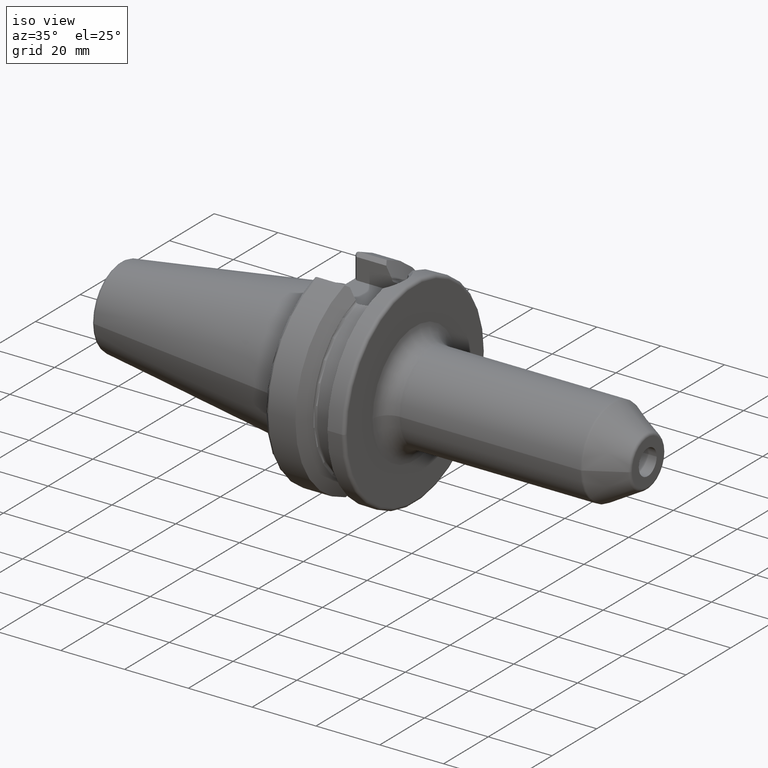
[diagram: clean part render]
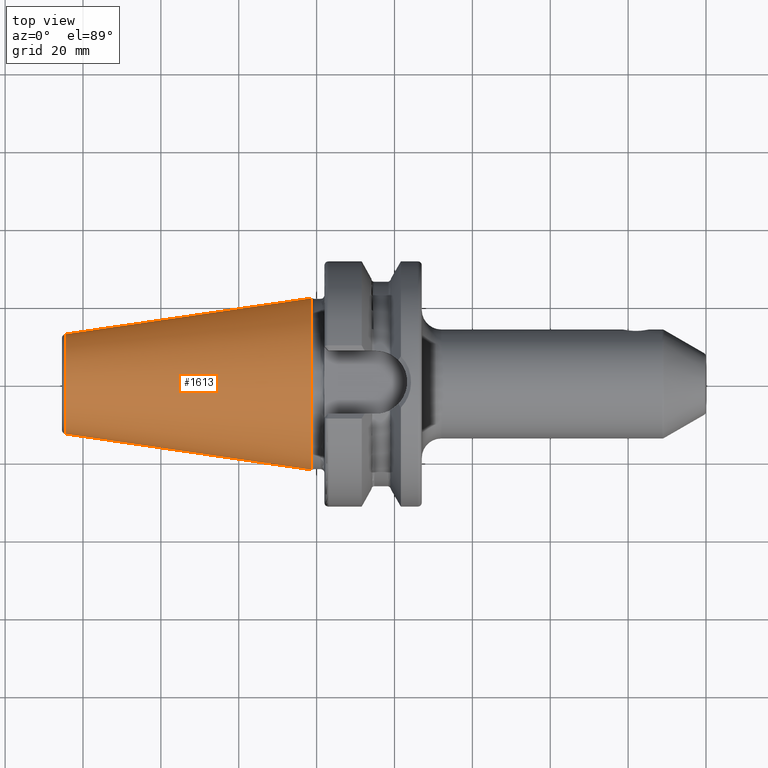
[diagram: tour spotlight — one face highlighted and labeled with its STEP entity id]
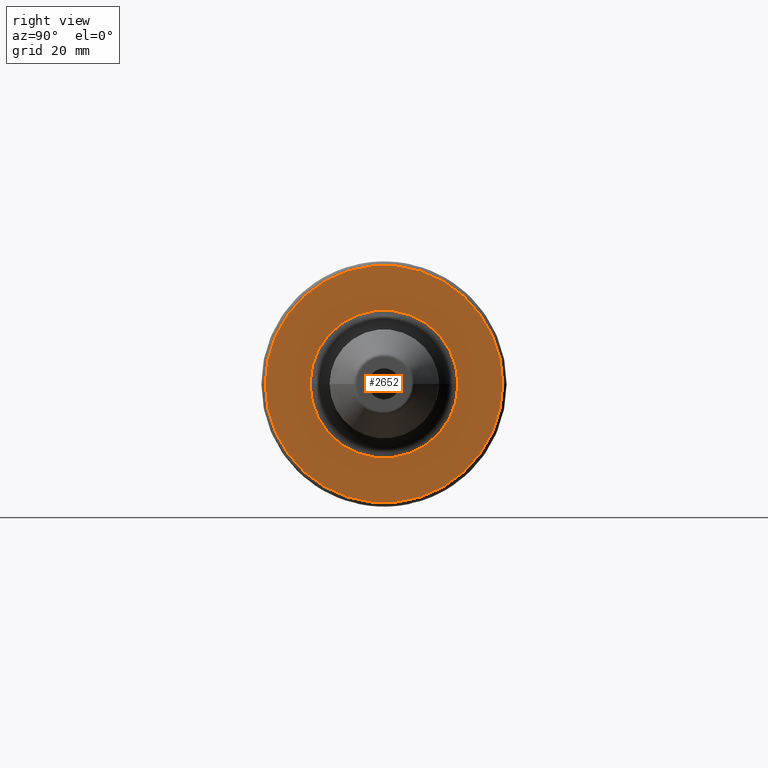
[diagram: tour spotlight — one face highlighted and labeled with its STEP entity id]
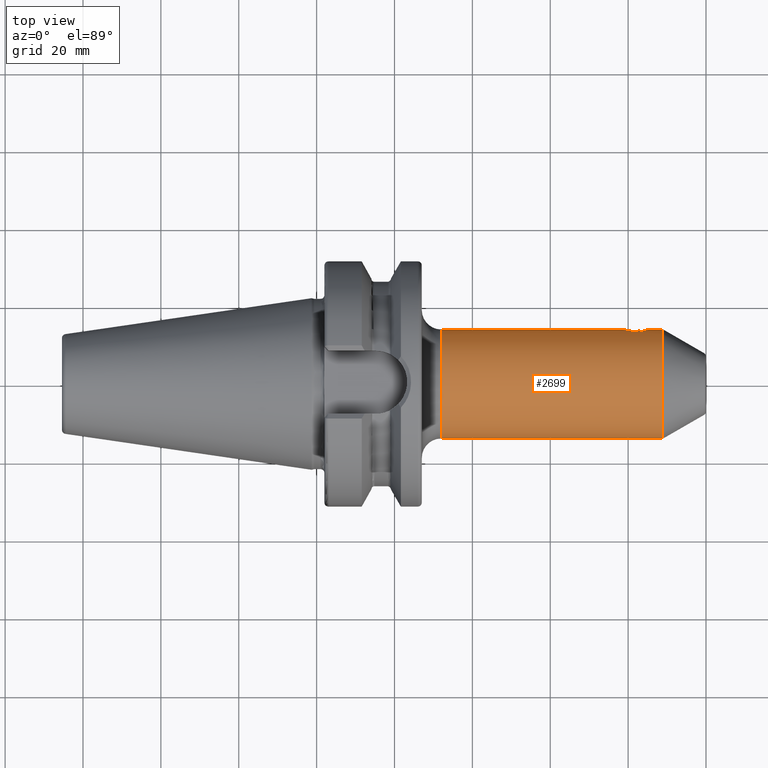
[diagram: tour spotlight — one face highlighted and labeled with its STEP entity id]
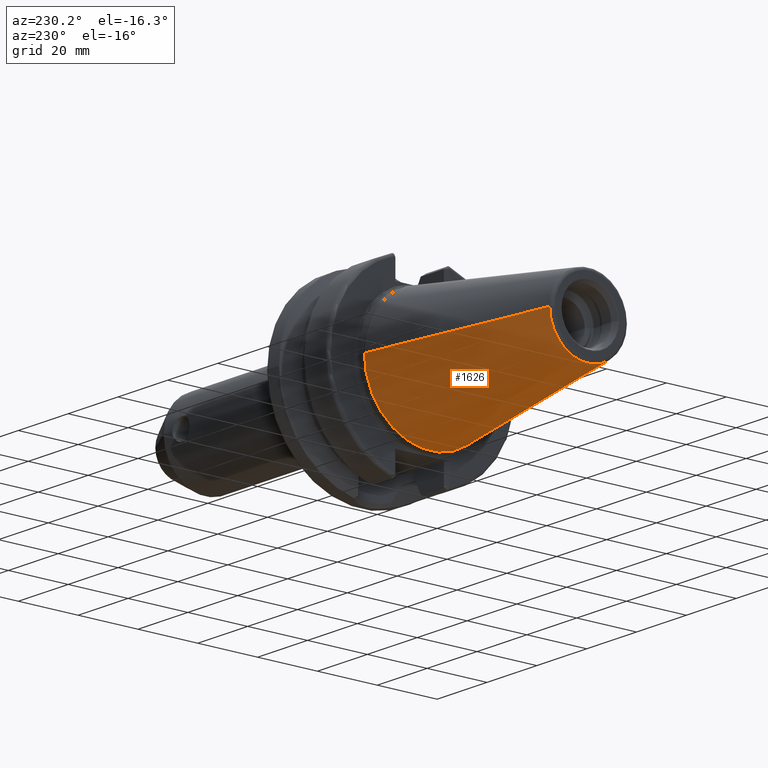
[diagram: tour spotlight — one face highlighted and labeled with its STEP entity id]
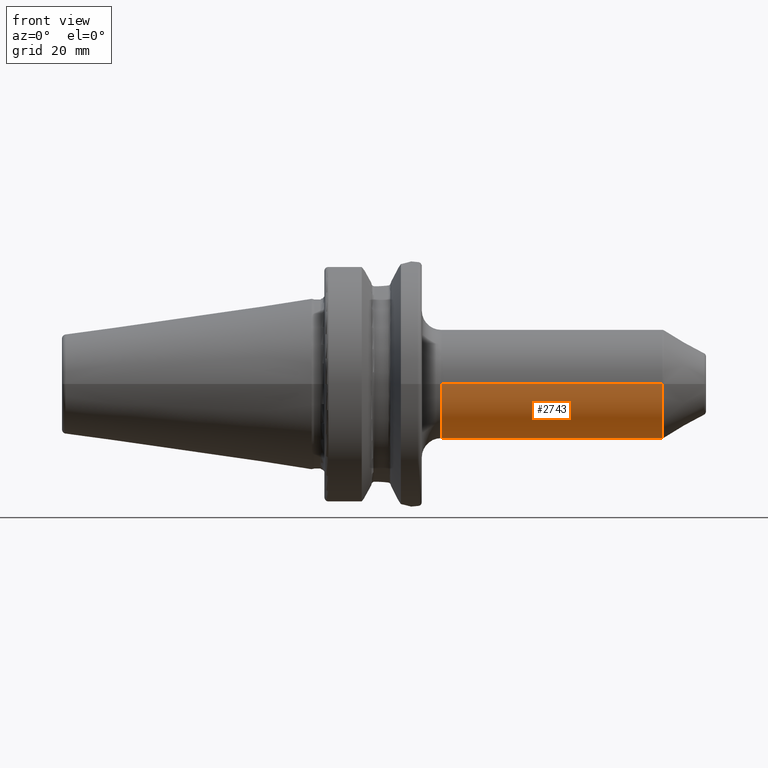
[diagram: tour spotlight — one face highlighted and labeled with its STEP entity id]
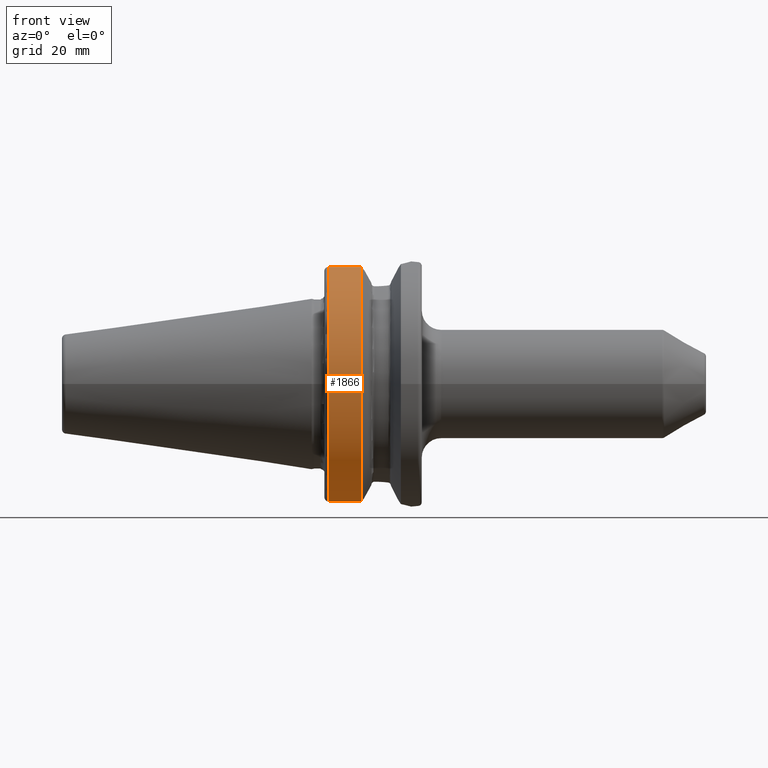
[diagram: tour spotlight — one face highlighted and labeled with its STEP entity id]
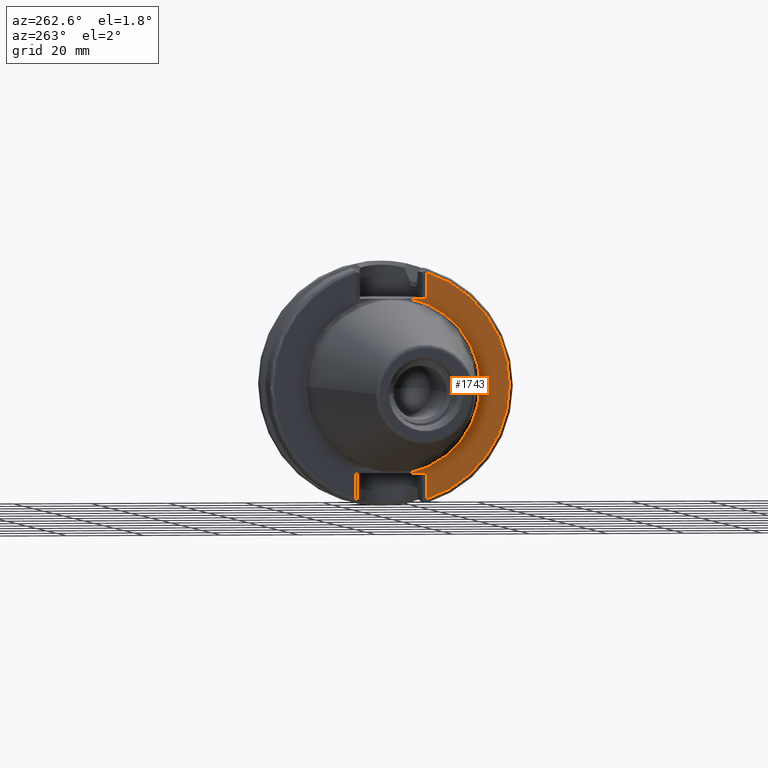
[diagram: tour spotlight — one face highlighted and labeled with its STEP entity id]
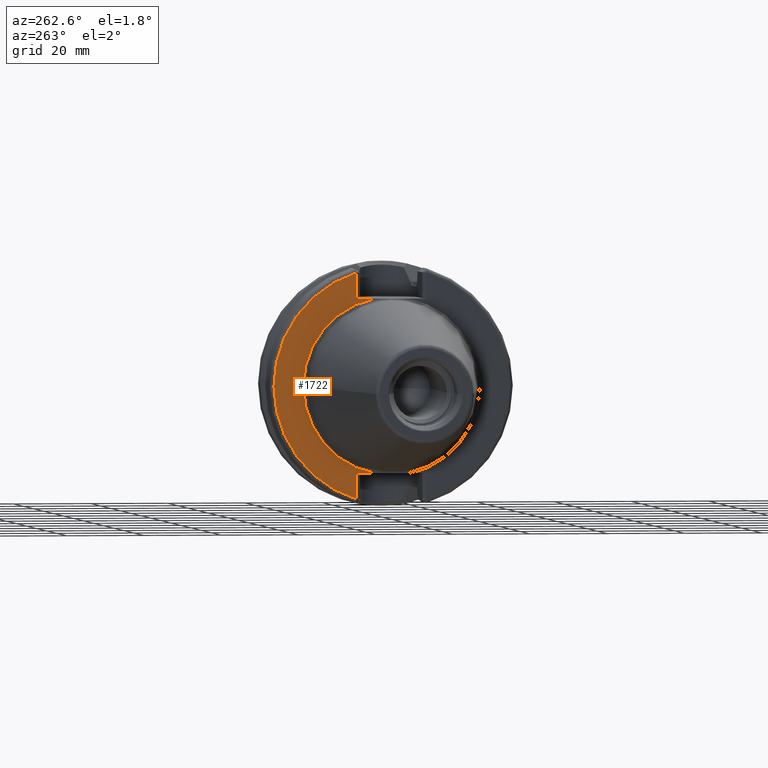
[diagram: tour spotlight — one face highlighted and labeled with its STEP entity id]
A machine part: a face-by-face anatomy tour. The part has 102 B-rep faces; the first image is the clean iso view, then the 8 largest visible faces are spotlighted one at a time (largest first), each with its STEP entity span.

Face 1 — top view, entity #1613. In plain terms, the highlighted conical surface has half-angle 8.298 deg.
Definition (entity closure, byte-faithful):
#37=CARTESIAN_POINT('',(-6.454431866917E1,0.E0,0.E0));
#38=DIRECTION('',(1.E0,0.E0,0.E0));
#39=DIRECTION('',(0.E0,1.E0,0.E0));
#40=AXIS2_PLACEMENT_3D('',#37,#38,#39);
#42=CARTESIAN_POINT('',(-1.266732031557E0,0.E0,0.E0));
#43=DIRECTION('',(1.E0,0.E0,0.E0));
#44=DIRECTION('',(0.E0,1.E0,0.E0));
#45=AXIS2_PLACEMENT_3D('',#42,#43,#44);
#47=DIRECTION('',(-9.895312636440E-1,-1.443186691705E-1,0.E0));
#48=VECTOR('',#47,6.394703124850E1);
#49=CARTESIAN_POINT('',(-1.266732031557E0,2.204025284980E1,0.E0));
#50=LINE('',#49,#48);
#51=DIRECTION('',(-9.895312636440E-1,1.443186691705E-1,0.E0));
#52=VECTOR('',#51,6.394703124850E1);
#53=CARTESIAN_POINT('',(-1.266732031557E0,-2.204025284980E1,0.E0));
#54=LINE('',#53,#52);
#1294=CARTESIAN_POINT('',(-6.454431866917E1,1.281150240261E1,0.E0));
#1296=VERTEX_POINT('',#1294);
#1298=CARTESIAN_POINT('',(-6.454431866917E1,-1.281150240261E1,0.E0));
#1300=VERTEX_POINT('',#1298);
#1513=CARTESIAN_POINT('',(-1.266732031557E0,2.204025284980E1,0.E0));
#1514=VERTEX_POINT('',#1513);
#1515=CARTESIAN_POINT('',(-1.266732031557E0,-2.204025284980E1,0.E0));
#1516=VERTEX_POINT('',#1515);
#1599=CARTESIAN_POINT('',(-3.290552535036E1,0.E0,0.E0));
#1600=DIRECTION('',(1.E0,0.E0,0.E0));
#1601=DIRECTION('',(0.E0,-1.E0,0.E0));
#1602=AXIS2_PLACEMENT_3D('',#1599,#1600,#1601);
#1603=CONICAL_SURFACE('',#1602,1.742587762621E1,8.297826828206E0);
#1605=ORIENTED_EDGE('',*,*,#1604,.F.);
#1607=ORIENTED_EDGE('',*,*,#1606,.T.);
#1609=ORIENTED_EDGE('',*,*,#1608,.T.);
#1610=ORIENTED_EDGE('',*,*,#1592,.F.);
#1611=EDGE_LOOP('',(#1605,#1607,#1609,#1610));
#1612=FACE_OUTER_BOUND('',#1611,.F.);
#1613=ADVANCED_FACE('',(#1612),#1603,.T.);
#41=CIRCLE('',#40,1.281150240261E1);
#46=CIRCLE('',#45,2.204025284980E1);
#1592=EDGE_CURVE('',#1296,#1300,#41,.T.);
#1604=EDGE_CURVE('',#1514,#1296,#50,.T.);
#1606=EDGE_CURVE('',#1514,#1516,#46,.T.);
#1608=EDGE_CURVE('',#1516,#1300,#54,.T.);

Face 2 — right view, entity #2652. In plain terms, the highlighted planar face has unit normal (1, 0, 0).
Definition (entity closure, byte-faithful):
#816=CARTESIAN_POINT('',(2.7E1,0.E0,0.E0));
#817=DIRECTION('',(1.E0,0.E0,0.E0));
#818=DIRECTION('',(0.E0,1.E0,0.E0));
#819=AXIS2_PLACEMENT_3D('',#816,#817,#818);
#831=CARTESIAN_POINT('',(2.7E1,0.E0,0.E0));
#832=DIRECTION('',(-1.E0,0.E0,0.E0));
#833=DIRECTION('',(0.E0,1.E0,0.E0));
#834=AXIS2_PLACEMENT_3D('',#831,#832,#833);
#836=CARTESIAN_POINT('',(2.7E1,0.E0,0.E0));
#837=DIRECTION('',(1.E0,0.E0,0.E0));
#838=DIRECTION('',(0.E0,-1.E0,0.E0));
#839=AXIS2_PLACEMENT_3D('',#836,#837,#838);
#841=CARTESIAN_POINT('',(2.7E1,0.E0,0.E0));
#842=DIRECTION('',(1.E0,0.E0,0.E0));
#843=DIRECTION('',(0.E0,1.E0,0.E0));
#844=AXIS2_PLACEMENT_3D('',#841,#842,#843);
#1428=CARTESIAN_POINT('',(2.7E1,3.04875E1,0.E0));
#1429=VERTEX_POINT('',#1428);
#1430=CARTESIAN_POINT('',(2.7E1,-3.04875E1,0.E0));
#1431=VERTEX_POINT('',#1430);
#1529=CARTESIAN_POINT('',(2.7E1,-1.9E1,0.E0));
#1530=CARTESIAN_POINT('',(2.7E1,1.9E1,0.E0));
#1531=VERTEX_POINT('',#1529);
#1532=VERTEX_POINT('',#1530);
#2637=CARTESIAN_POINT('',(2.7E1,0.E0,0.E0));
#2638=DIRECTION('',(1.E0,0.E0,0.E0));
#2639=DIRECTION('',(0.E0,-1.E0,0.E0));
#2640=AXIS2_PLACEMENT_3D('',#2637,#2638,#2639);
#2641=PLANE('',#2640);
#2642=ORIENTED_EDGE('',*,*,#2632,.T.);
#2643=ORIENTED_EDGE('',*,*,#2616,.F.);
#2644=EDGE_LOOP('',(#2642,#2643));
#2645=FACE_OUTER_BOUND('',#2644,.F.);
#2647=ORIENTED_EDGE('',*,*,#2646,.T.);
#2649=ORIENTED_EDGE('',*,*,#2648,.T.);
#2650=EDGE_LOOP('',(#2647,#2649));
#2651=FACE_BOUND('',#2650,.F.);
#2652=ADVANCED_FACE('',(#2645,#2651),#2641,.T.);
#820=CIRCLE('',#819,3.04875E1);
#835=CIRCLE('',#834,3.04875E1);
#840=CIRCLE('',#839,1.9E1);
#845=CIRCLE('',#844,1.9E1);
#2616=EDGE_CURVE('',#1429,#1431,#820,.T.);
#2632=EDGE_CURVE('',#1429,#1431,#835,.T.);
#2646=EDGE_CURVE('',#1531,#1532,#840,.T.);
#2648=EDGE_CURVE('',#1532,#1531,#845,.T.);

Face 3 — top view, entity #2699. In plain terms, the highlighted cylindrical surface (partial cylindrical patch) has radius 14 mm, axis along (1, 0, 0).
Definition (entity closure, byte-faithful):
#856=CARTESIAN_POINT('',(8.873205080757E1,0.E0,0.E0));
#857=DIRECTION('',(-1.E0,0.E0,0.E0));
#858=DIRECTION('',(0.E0,-1.E0,0.E0));
#859=AXIS2_PLACEMENT_3D('',#856,#857,#858);
#861=CARTESIAN_POINT('',(3.2E1,0.E0,0.E0));
#862=DIRECTION('',(1.E0,0.E0,0.E0));
#863=DIRECTION('',(0.E0,1.E0,0.E0));
#864=AXIS2_PLACEMENT_3D('',#861,#862,#863);
#866=CARTESIAN_POINT('',(8.54E1,1.4E1,0.E0));
#867=CARTESIAN_POINT('',(8.54E1,1.4E1,2.235108655869E-1));
#868=CARTESIAN_POINT('',(8.535688758079E1,1.398943470966E1,6.615089276859E-1));
#869=CARTESIAN_POINT('',(8.516426425526E1,1.394392107935E1,1.302298227191E0));
#870=CARTESIAN_POINT('',(8.485258800685E1,1.387569668318E1,1.889062807267E0));
#871=CARTESIAN_POINT('',(8.443491012316E1,1.379489229600E1,2.403600047726E0));
#872=CARTESIAN_POINT('',(8.392522333627E1,1.371306387193E1,2.828445185897E0));
#873=CARTESIAN_POINT('',(8.334019969910E1,1.364221148401E1,3.148601282182E0));
#874=CARTESIAN_POINT('',(8.269519582112E1,1.359323806992E1,3.351072023934E0));
#875=CARTESIAN_POINT('',(8.202027132267E1,1.357521549289E1,3.422345608711E0));
#876=CARTESIAN_POINT('',(8.134597271364E1,1.359120505091E1,3.359179214455E0));
#877=CARTESIAN_POINT('',(8.069958988272E1,1.363827482784E1,3.165403868172E0));
#878=CARTESIAN_POINT('',(8.010540101493E1,1.370865303423E1,2.849641594248E0));
#879=CARTESIAN_POINT('',(7.958561030798E1,1.379117730538E1,2.424959378607E0));
#880=CARTESIAN_POINT('',(7.915887896700E1,1.387327800363E1,1.907129268942E0));
#881=CARTESIAN_POINT('',(7.884099959156E1,1.394269899228E1,1.316150473743E0));
#882=CARTESIAN_POINT('',(7.864412411289E1,1.398918397245E1,6.690701643518E-1));
#883=CARTESIAN_POINT('',(7.86E1,1.4E1,2.261801830964E-1));
#884=CARTESIAN_POINT('',(7.86E1,1.4E1,0.E0));
#901=DIRECTION('',(-1.E0,0.E0,1.556720858388E-12));
#902=VECTOR('',#901,3.332050807569E0);
#903=CARTESIAN_POINT('',(8.873205080757E1,1.4E1,-5.186215740592E-12));
#904=LINE('',#903,#902);
#925=DIRECTION('',(-1.E0,0.E0,6.383216559045E-14));
#926=VECTOR('',#925,4.66E1);
#927=CARTESIAN_POINT('',(7.86E1,1.4E1,0.E0));
#928=LINE('',#927,#926);
#934=DIRECTION('',(-1.E0,0.E0,-1.438638727067E-13));
#935=VECTOR('',#934,5.673205080757E1);
#936=CARTESIAN_POINT('',(8.873205080757E1,-1.4E1,5.185779167861E-12));
#937=LINE('',#936,#935);
#1525=VERTEX_POINT('',#866);
#1526=VERTEX_POINT('',#884);
#1533=CARTESIAN_POINT('',(3.2E1,-1.4E1,0.E0));
#1534=CARTESIAN_POINT('',(3.2E1,1.4E1,0.E0));
#1535=VERTEX_POINT('',#1533);
#1536=VERTEX_POINT('',#1534);
#1537=CARTESIAN_POINT('',(8.873205080757E1,1.4E1,0.E0));
#1538=CARTESIAN_POINT('',(8.873205080757E1,-1.4E1,0.E0));
#1539=VERTEX_POINT('',#1537);
#1540=VERTEX_POINT('',#1538);
#2681=CARTESIAN_POINT('',(2.335E1,0.E0,0.E0));
#2682=DIRECTION('',(1.E0,0.E0,0.E0));
#2683=DIRECTION('',(0.E0,-1.E0,0.E0));
#2684=AXIS2_PLACEMENT_3D('',#2681,#2682,#2683);
#2685=CYLINDRICAL_SURFACE('',#2684,1.4E1);
#2687=ORIENTED_EDGE('',*,*,#2686,.F.);
#2689=ORIENTED_EDGE('',*,*,#2688,.T.);
#2690=ORIENTED_EDGE('',*,*,#2673,.F.);
#2692=ORIENTED_EDGE('',*,*,#2691,.F.);
#2694=ORIENTED_EDGE('',*,*,#2693,.F.);
#2696=ORIENTED_EDGE('',*,*,#2695,.F.);
#2697=EDGE_LOOP('',(#2687,#2689,#2690,#2692,#2694,#2696));
#2698=FACE_OUTER_BOUND('',#2697,.F.);
#2699=ADVANCED_FACE('',(#2698),#2685,.T.);
#860=CIRCLE('',#859,1.4E1);
#865=CIRCLE('',#864,1.4E1);
#885=B_SPLINE_CURVE_WITH_KNOTS('',3,(#866,#867,#868,#869,#870,#871,#872,#873,
#874,#875,#876,#877,#878,#879,#880,#881,#882,#883,#884),.UNSPECIFIED.,.F.,.F.,
(4,1,1,1,1,1,1,1,1,1,1,1,1,1,1,1,4),(0.E0,6.25E-2,1.25E-1,1.875E-1,2.5E-1,
3.125E-1,3.75E-1,4.375E-1,5.E-1,5.625E-1,6.25E-1,6.875E-1,7.5E-1,8.125E-1,
8.75E-1,9.375E-1,1.E0),.UNSPECIFIED.);
#2673=EDGE_CURVE('',#1536,#1535,#865,.T.);
#2686=EDGE_CURVE('',#1540,#1539,#860,.T.);
#2688=EDGE_CURVE('',#1540,#1535,#937,.T.);
#2691=EDGE_CURVE('',#1526,#1536,#928,.T.);
#2693=EDGE_CURVE('',#1525,#1526,#885,.T.);
#2695=EDGE_CURVE('',#1539,#1525,#904,.T.);

Face 4 — auxiliary view, entity #1626. In plain terms, the highlighted conical surface has half-angle 8.298 deg.
Definition (entity closure, byte-faithful):
#32=CARTESIAN_POINT('',(-6.454431866917E1,0.E0,0.E0));
#33=DIRECTION('',(-1.E0,0.E0,0.E0));
#34=DIRECTION('',(0.E0,1.E0,0.E0));
#35=AXIS2_PLACEMENT_3D('',#32,#33,#34);
#47=DIRECTION('',(-9.895312636440E-1,-1.443186691705E-1,0.E0));
#48=VECTOR('',#47,6.394703124850E1);
#49=CARTESIAN_POINT('',(-1.266732031557E0,2.204025284980E1,0.E0));
#50=LINE('',#49,#48);
#51=DIRECTION('',(-9.895312636440E-1,1.443186691705E-1,0.E0));
#52=VECTOR('',#51,6.394703124850E1);
#53=CARTESIAN_POINT('',(-1.266732031557E0,-2.204025284980E1,0.E0));
#54=LINE('',#53,#52);
#55=CARTESIAN_POINT('',(-1.266732031557E0,0.E0,0.E0));
#56=DIRECTION('',(-1.E0,0.E0,0.E0));
#57=DIRECTION('',(0.E0,1.E0,0.E0));
#58=AXIS2_PLACEMENT_3D('',#55,#56,#57);
#1294=CARTESIAN_POINT('',(-6.454431866917E1,1.281150240261E1,0.E0));
#1296=VERTEX_POINT('',#1294);
#1298=CARTESIAN_POINT('',(-6.454431866917E1,-1.281150240261E1,0.E0));
#1300=VERTEX_POINT('',#1298);
#1513=CARTESIAN_POINT('',(-1.266732031557E0,2.204025284980E1,0.E0));
#1514=VERTEX_POINT('',#1513);
#1515=CARTESIAN_POINT('',(-1.266732031557E0,-2.204025284980E1,0.E0));
#1516=VERTEX_POINT('',#1515);
#1614=CARTESIAN_POINT('',(-3.290552535036E1,0.E0,0.E0));
#1615=DIRECTION('',(1.E0,0.E0,0.E0));
#1616=DIRECTION('',(0.E0,-1.E0,0.E0));
#1617=AXIS2_PLACEMENT_3D('',#1614,#1615,#1616);
#1618=CONICAL_SURFACE('',#1617,1.742587762621E1,8.297826828206E0);
#1619=ORIENTED_EDGE('',*,*,#1604,.T.);
#1620=ORIENTED_EDGE('',*,*,#1581,.T.);
#1621=ORIENTED_EDGE('',*,*,#1608,.F.);
#1623=ORIENTED_EDGE('',*,*,#1622,.F.);
#1624=EDGE_LOOP('',(#1619,#1620,#1621,#1623));
#1625=FACE_OUTER_BOUND('',#1624,.F.);
#1626=ADVANCED_FACE('',(#1625),#1618,.T.);
#36=CIRCLE('',#35,1.281150240261E1);
#59=CIRCLE('',#58,2.204025284980E1);
#1581=EDGE_CURVE('',#1296,#1300,#36,.T.);
#1604=EDGE_CURVE('',#1514,#1296,#50,.T.);
#1608=EDGE_CURVE('',#1516,#1300,#54,.T.);
#1622=EDGE_CURVE('',#1514,#1516,#59,.T.);

Face 5 — front view, entity #2743. In plain terms, the highlighted cylindrical surface (partial cylindrical patch) has radius 14 mm, axis along (1, 0, 0).
Definition (entity closure, byte-faithful):
#866=CARTESIAN_POINT('',(8.54E1,1.4E1,0.E0));
#884=CARTESIAN_POINT('',(7.86E1,1.4E1,0.E0));
#896=CARTESIAN_POINT('',(8.873205080757E1,0.E0,0.E0));
#897=DIRECTION('',(-1.E0,0.E0,0.E0));
#898=DIRECTION('',(0.E0,1.E0,0.E0));
#899=AXIS2_PLACEMENT_3D('',#896,#897,#898);
#901=DIRECTION('',(-1.E0,0.E0,1.556720858388E-12));
#902=VECTOR('',#901,3.332050807569E0);
#903=CARTESIAN_POINT('',(8.873205080757E1,1.4E1,-5.186215740592E-12));
#904=LINE('',#903,#902);
#905=CARTESIAN_POINT('',(7.86E1,1.4E1,0.E0));
#906=CARTESIAN_POINT('',(7.86E1,1.4E1,-2.231562732058E-1));
#907=CARTESIAN_POINT('',(7.864298012491E1,1.398946756483E1,-6.605099202631E-1));
#908=CARTESIAN_POINT('',(7.883504453144E1,1.394408140233E1,-1.300478179657E0));
#909=CARTESIAN_POINT('',(7.914594903352E1,1.387600613631E1,-1.886732676915E0));
#910=CARTESIAN_POINT('',(7.956233155008E1,1.379539529519E1,-2.400679876786E0));
#911=CARTESIAN_POINT('',(8.007044363743E1,1.371369591527E1,-2.825388788542E0));
#912=CARTESIAN_POINT('',(8.065403681884E1,1.364278985832E1,-3.146126422897E0));
#913=CARTESIAN_POINT('',(8.129921161854E1,1.359351396268E1,-3.349973294811E0));
#914=CARTESIAN_POINT('',(8.197498267400E1,1.357520902013E1,-3.422370545153E0));
#915=CARTESIAN_POINT('',(8.265004090069E1,1.359100290876E1,-3.359987024249E0));
#916=CARTESIAN_POINT('',(8.329708182257E1,1.363794618980E1,-3.166806389833E0));
#917=CARTESIAN_POINT('',(8.389213227934E1,1.370830051980E1,-2.851329798670E0));
#918=CARTESIAN_POINT('',(8.441272194079E1,1.379087694659E1,-2.426674591729E0));
#919=CARTESIAN_POINT('',(8.484016501682E1,1.387307680736E1,-1.908622709765E0));
#920=CARTESIAN_POINT('',(8.515857323528E1,1.394259973954E1,-1.317274340851E0));
#921=CARTESIAN_POINT('',(8.535579552230E1,1.398916407164E1,-6.696714596922E-1));
#922=CARTESIAN_POINT('',(8.54E1,1.4E1,-2.263905402596E-1));
#923=CARTESIAN_POINT('',(8.54E1,1.4E1,0.E0));
#925=DIRECTION('',(-1.E0,0.E0,6.383216559045E-14));
#926=VECTOR('',#925,4.66E1);
#927=CARTESIAN_POINT('',(7.86E1,1.4E1,0.E0));
#928=LINE('',#927,#926);
#929=CARTESIAN_POINT('',(3.2E1,0.E0,0.E0));
#930=DIRECTION('',(1.E0,0.E0,0.E0));
#931=DIRECTION('',(0.E0,-1.E0,0.E0));
#932=AXIS2_PLACEMENT_3D('',#929,#930,#931);
#934=DIRECTION('',(-1.E0,0.E0,-1.438638727067E-13));
#935=VECTOR('',#934,5.673205080757E1);
#936=CARTESIAN_POINT('',(8.873205080757E1,-1.4E1,5.185779167861E-12));
#937=LINE('',#936,#935);
#1525=VERTEX_POINT('',#866);
#1526=VERTEX_POINT('',#884);
#1533=CARTESIAN_POINT('',(3.2E1,-1.4E1,0.E0));
#1534=CARTESIAN_POINT('',(3.2E1,1.4E1,0.E0));
#1535=VERTEX_POINT('',#1533);
#1536=VERTEX_POINT('',#1534);
#1537=CARTESIAN_POINT('',(8.873205080757E1,1.4E1,0.E0));
#1538=CARTESIAN_POINT('',(8.873205080757E1,-1.4E1,0.E0));
#1539=VERTEX_POINT('',#1537);
#1540=VERTEX_POINT('',#1538);
#2729=CARTESIAN_POINT('',(2.335E1,0.E0,0.E0));
#2730=DIRECTION('',(1.E0,0.E0,0.E0));
#2731=DIRECTION('',(0.E0,-1.E0,0.E0));
#2732=AXIS2_PLACEMENT_3D('',#2729,#2730,#2731);
#2733=CYLINDRICAL_SURFACE('',#2732,1.4E1);
#2734=ORIENTED_EDGE('',*,*,#2720,.F.);
#2735=ORIENTED_EDGE('',*,*,#2695,.T.);
#2737=ORIENTED_EDGE('',*,*,#2736,.F.);
#2738=ORIENTED_EDGE('',*,*,#2691,.T.);
#2739=ORIENTED_EDGE('',*,*,#2661,.F.);
#2740=ORIENTED_EDGE('',*,*,#2688,.F.);
#2741=EDGE_LOOP('',(#2734,#2735,#2737,#2738,#2739,#2740));
#2742=FACE_OUTER_BOUND('',#2741,.F.);
#2743=ADVANCED_FACE('',(#2742),#2733,.T.);
#900=CIRCLE('',#899,1.4E1);
#924=B_SPLINE_CURVE_WITH_KNOTS('',3,(#905,#906,#907,#908,#909,#910,#911,#912,
#913,#914,#915,#916,#917,#918,#919,#920,#921,#922,#923),.UNSPECIFIED.,.F.,.F.,
(4,1,1,1,1,1,1,1,1,1,1,1,1,1,1,1,4),(0.E0,6.25E-2,1.25E-1,1.875E-1,2.5E-1,
3.125E-1,3.75E-1,4.375E-1,5.E-1,5.625E-1,6.25E-1,6.875E-1,7.5E-1,8.125E-1,
8.75E-1,9.375E-1,1.E0),.UNSPECIFIED.);
#933=CIRCLE('',#932,1.4E1);
#2661=EDGE_CURVE('',#1535,#1536,#933,.T.);
#2688=EDGE_CURVE('',#1540,#1535,#937,.T.);
#2691=EDGE_CURVE('',#1526,#1536,#928,.T.);
#2695=EDGE_CURVE('',#1539,#1525,#904,.T.);
#2720=EDGE_CURVE('',#1539,#1540,#900,.T.);
#2736=EDGE_CURVE('',#1526,#1525,#924,.T.);

Face 6 — front view, entity #1866. In plain terms, the highlighted cylindrical surface (partial cylindrical patch) has radius 31.4875 mm, axis along (1, 0, 0).
Definition (entity closure, byte-faithful):
#210=CARTESIAN_POINT('',(1.157272253103E1,0.E0,0.E0));
#211=DIRECTION('',(1.E0,0.E0,0.E0));
#212=DIRECTION('',(0.E0,-2.983189831898E-1,9.544662300305E-1));
#213=AXIS2_PLACEMENT_3D('',#210,#211,#212);
#215=DIRECTION('',(9.999999999998E-1,-3.572441507671E-7,4.802508939409E-7));
#216=VECTOR('',#215,8.572722533299E0);
#217=CARTESIAN_POINT('',(2.999999997734E0,-9.052776400559E0,-3.015808496187E1));
#218=LINE('',#217,#216);
#219=CARTESIAN_POINT('',(3.E0,0.E0,0.E0));
#220=DIRECTION('',(-1.E0,0.E0,0.E0));
#221=DIRECTION('',(0.E0,-2.875039130802E-1,-9.577794631143E-1));
#222=AXIS2_PLACEMENT_3D('',#219,#220,#221);
#224=DIRECTION('',(-9.999999999911E-1,2.496639374553E-6,3.395432034657E-6));
#225=VECTOR('',#224,8.572722551500E0);
#226=CARTESIAN_POINT('',(1.157272253103E1,-9.393318983190E0,3.005375541808E1));
#227=LINE('',#226,#225);
#606=CARTESIAN_POINT('',(2.999999997734E0,-9.052776400559E0,-3.015808496187E1));
#1464=CARTESIAN_POINT('',(1.157272253103E1,-9.393318983190E0,3.005375541808E1));
#1465=CARTESIAN_POINT('',(1.157272253103E1,-9.052779463114E0,
-3.015808084481E1));
#1466=VERTEX_POINT('',#1464);
#1467=VERTEX_POINT('',#1465);
#1480=CARTESIAN_POINT('',(3.E0,-9.393347656107E0,3.005374645633E1));
#1481=VERTEX_POINT('',#1480);
#1502=VERTEX_POINT('',#606);
#1852=CARTESIAN_POINT('',(-7.002E1,0.E0,0.E0));
#1853=DIRECTION('',(1.E0,0.E0,0.E0));
#1854=DIRECTION('',(0.E0,-1.E0,0.E0));
#1855=AXIS2_PLACEMENT_3D('',#1852,#1853,#1854);
#1856=CYLINDRICAL_SURFACE('',#1855,3.14875E1);
#1857=ORIENTED_EDGE('',*,*,#1843,.T.);
#1859=ORIENTED_EDGE('',*,*,#1858,.F.);
#1861=ORIENTED_EDGE('',*,*,#1860,.T.);
#1863=ORIENTED_EDGE('',*,*,#1862,.F.);
#1864=EDGE_LOOP('',(#1857,#1859,#1861,#1863));
#1865=FACE_OUTER_BOUND('',#1864,.F.);
#1866=ADVANCED_FACE('',(#1865),#1856,.T.);
#214=CIRCLE('',#213,3.14875E1);
#223=CIRCLE('',#222,3.14875E1);
#1843=EDGE_CURVE('',#1466,#1467,#214,.T.);
#1858=EDGE_CURVE('',#1502,#1467,#218,.T.);
#1860=EDGE_CURVE('',#1502,#1481,#223,.T.);
#1862=EDGE_CURVE('',#1466,#1481,#227,.T.);

Face 7 — auxiliary view, entity #1743. In plain terms, the highlighted planar face has unit normal (1, 0, 0).
Definition (entity closure, byte-faithful):
#111=CARTESIAN_POINT('',(2.E0,0.E0,0.E0));
#112=DIRECTION('',(-1.E0,0.E0,0.E0));
#113=DIRECTION('',(0.E0,-1.918678763451E-1,-9.814207650273E-1));
#114=AXIS2_PLACEMENT_3D('',#111,#112,#113);
#135=DIRECTION('',(-2.137863157207E-6,2.138092595446E-6,-9.999999999954E-1));
#136=VECTOR('',#135,6.649288203879E0);
#137=CARTESIAN_POINT('',(2.E0,-9.095E0,-2.245E1));
#138=LINE('',#137,#136);
#139=DIRECTION('',(4.462834027234E-6,-4.463945838797E-6,-9.999999999801E-1));
#140=VECTOR('',#139,6.649296399172E0);
#141=CARTESIAN_POINT('',(1.999970325294E0,-9.094970317901E0,2.909929639904E1));
#142=LINE('',#141,#140);
#597=CARTESIAN_POINT('',(1.999985784732E0,-9.094985783206E0,-2.909928820385E1));
#608=CARTESIAN_POINT('',(2.E0,0.E0,0.E0));
#609=DIRECTION('',(-1.E0,0.E0,0.E0));
#610=DIRECTION('',(0.E0,-2.983190208830E-1,-9.544662182495E-1));
#611=AXIS2_PLACEMENT_3D('',#608,#609,#610);
#684=DIRECTION('',(0.E0,1.E0,0.E0));
#685=VECTOR('',#684,4.706022328605E0);
#686=CARTESIAN_POINT('',(2.E0,-9.095E0,2.245E1));
#687=LINE('',#686,#685);
#725=CARTESIAN_POINT('',(2.E0,0.E0,0.E0));
#726=DIRECTION('',(1.E0,0.E0,0.E0));
#727=DIRECTION('',(0.E0,-1.918678763451E-1,9.814207650273E-1));
#728=AXIS2_PLACEMENT_3D('',#725,#726,#727);
#750=DIRECTION('',(0.E0,-1.E0,0.E0));
#751=VECTOR('',#750,4.706022328605E0);
#752=CARTESIAN_POINT('',(2.E0,-4.388977671395E0,-2.245E1));
#753=LINE('',#752,#751);
#1372=CARTESIAN_POINT('',(2.E0,-2.2875E1,0.E0));
#1374=VERTEX_POINT('',#1372);
#1438=CARTESIAN_POINT('',(2.E0,-4.388977671395E0,2.245E1));
#1439=VERTEX_POINT('',#1438);
#1446=CARTESIAN_POINT('',(2.E0,-4.388977671395E0,-2.245E1));
#1447=VERTEX_POINT('',#1446);
#1476=CARTESIAN_POINT('',(1.999970325294E0,-9.094970317901E0,2.909929639904E1));
#1477=CARTESIAN_POINT('',(2.E0,-9.095E0,2.245E1));
#1478=VERTEX_POINT('',#1476);
#1479=VERTEX_POINT('',#1477);
#1501=VERTEX_POINT('',#597);
#1503=CARTESIAN_POINT('',(2.E0,-9.095E0,-2.245E1));
#1504=VERTEX_POINT('',#1503);
#1723=CARTESIAN_POINT('',(2.E0,0.E0,0.E0));
#1724=DIRECTION('',(1.E0,0.E0,0.E0));
#1725=DIRECTION('',(0.E0,-1.E0,0.E0));
#1726=AXIS2_PLACEMENT_3D('',#1723,#1724,#1725);
#1727=PLANE('',#1726);
#1729=ORIENTED_EDGE('',*,*,#1728,.F.);
#1731=ORIENTED_EDGE('',*,*,#1730,.F.);
#1732=ORIENTED_EDGE('',*,*,#1695,.T.);
#1734=ORIENTED_EDGE('',*,*,#1733,.F.);
#1736=ORIENTED_EDGE('',*,*,#1735,.F.);
#1738=ORIENTED_EDGE('',*,*,#1737,.F.);
#1740=ORIENTED_EDGE('',*,*,#1739,.F.);
#1741=EDGE_LOOP('',(#1729,#1731,#1732,#1734,#1736,#1738,#1740));
#1742=FACE_OUTER_BOUND('',#1741,.F.);
#1743=ADVANCED_FACE('',(#1742),#1727,.F.);
#115=CIRCLE('',#114,2.2875E1);
#612=CIRCLE('',#611,3.04875E1);
#729=CIRCLE('',#728,2.2875E1);
#1695=EDGE_CURVE('',#1447,#1374,#115,.T.);
#1728=EDGE_CURVE('',#1504,#1501,#138,.T.);
#1730=EDGE_CURVE('',#1447,#1504,#753,.T.);
#1733=EDGE_CURVE('',#1439,#1374,#729,.T.);
#1735=EDGE_CURVE('',#1479,#1439,#687,.T.);
#1737=EDGE_CURVE('',#1478,#1479,#142,.T.);
#1739=EDGE_CURVE('',#1501,#1478,#612,.T.);

Face 8 — auxiliary view, entity #1722. In plain terms, the highlighted planar face has unit normal (1, 0, 0).
Definition (entity closure, byte-faithful):
#96=CARTESIAN_POINT('',(2.E0,0.E0,0.E0));
#97=DIRECTION('',(-1.E0,0.E0,0.E0));
#98=DIRECTION('',(0.E0,1.E0,0.E0));
#99=AXIS2_PLACEMENT_3D('',#96,#97,#98);
#127=DIRECTION('',(2.137863157138E-6,2.138092596513E-6,9.999999999954E-1));
#128=VECTOR('',#127,6.649288203884E0);
#129=CARTESIAN_POINT('',(1.999985784732E0,9.094985783206E0,-2.909928820385E1));
#130=LINE('',#129,#128);
#131=DIRECTION('',(-4.462834027332E-6,-4.463945839096E-6,9.999999999801E-1));
#132=VECTOR('',#131,6.649296399125E0);
#133=CARTESIAN_POINT('',(2.E0,9.095E0,2.245E1));
#134=LINE('',#133,#132);
#592=CARTESIAN_POINT('',(2.E0,0.E0,0.E0));
#593=DIRECTION('',(-1.E0,0.E0,0.E0));
#594=DIRECTION('',(0.E0,2.983190614061E-1,9.544662055839E-1));
#595=AXIS2_PLACEMENT_3D('',#592,#593,#594);
#688=DIRECTION('',(0.E0,1.E0,0.E0));
#689=VECTOR('',#688,4.706022328605E0);
#690=CARTESIAN_POINT('',(2.E0,4.388977671395E0,2.245E1));
#691=LINE('',#690,#689);
#709=CARTESIAN_POINT('',(2.E0,0.E0,0.E0));
#710=DIRECTION('',(1.E0,0.E0,0.E0));
#711=DIRECTION('',(0.E0,1.E0,0.E0));
#712=AXIS2_PLACEMENT_3D('',#709,#710,#711);
#746=DIRECTION('',(0.E0,-1.E0,0.E0));
#747=VECTOR('',#746,4.706022328605E0);
#748=CARTESIAN_POINT('',(2.E0,9.095E0,-2.245E1));
#749=LINE('',#748,#747);
#1366=CARTESIAN_POINT('',(2.E0,2.2875E1,0.E0));
#1368=VERTEX_POINT('',#1366);
#1436=CARTESIAN_POINT('',(2.E0,4.388977671395E0,2.245E1));
#1437=VERTEX_POINT('',#1436);
#1444=CARTESIAN_POINT('',(2.E0,4.388977671395E0,-2.245E1));
#1445=VERTEX_POINT('',#1444);
#1482=CARTESIAN_POINT('',(2.E0,9.095027762300E0,2.909928051090E1));
#1484=VERTEX_POINT('',#1482);
#1486=CARTESIAN_POINT('',(2.E0,9.095E0,2.245E1));
#1487=VERTEX_POINT('',#1486);
#1496=CARTESIAN_POINT('',(1.999985784732E0,9.094985783206E0,-2.909928820385E1));
#1497=CARTESIAN_POINT('',(2.E0,9.095E0,-2.245E1));
#1498=VERTEX_POINT('',#1496);
#1499=VERTEX_POINT('',#1497);
#1702=CARTESIAN_POINT('',(2.E0,0.E0,0.E0));
#1703=DIRECTION('',(1.E0,0.E0,0.E0));
#1704=DIRECTION('',(0.E0,-1.E0,0.E0));
#1705=AXIS2_PLACEMENT_3D('',#1702,#1703,#1704);
#1706=PLANE('',#1705);
#1708=ORIENTED_EDGE('',*,*,#1707,.F.);
#1710=ORIENTED_EDGE('',*,*,#1709,.F.);
#1712=ORIENTED_EDGE('',*,*,#1711,.F.);
#1714=ORIENTED_EDGE('',*,*,#1713,.F.);
#1716=ORIENTED_EDGE('',*,*,#1715,.F.);
#1717=ORIENTED_EDGE('',*,*,#1688,.T.);
#1719=ORIENTED_EDGE('',*,*,#1718,.F.);
#1720=EDGE_LOOP('',(#1708,#1710,#1712,#1714,#1716,#1717,#1719));
#1721=FACE_OUTER_BOUND('',#1720,.F.);
#1722=ADVANCED_FACE('',(#1721),#1706,.F.);
#100=CIRCLE('',#99,2.2875E1);
#596=CIRCLE('',#595,3.04875E1);
#713=CIRCLE('',#712,2.2875E1);
#1688=EDGE_CURVE('',#1368,#1445,#100,.T.);
#1707=EDGE_CURVE('',#1498,#1499,#130,.T.);
#1709=EDGE_CURVE('',#1484,#1498,#596,.T.);
#1711=EDGE_CURVE('',#1487,#1484,#134,.T.);
#1713=EDGE_CURVE('',#1437,#1487,#691,.T.);
#1715=EDGE_CURVE('',#1368,#1437,#713,.T.);
#1718=EDGE_CURVE('',#1499,#1445,#749,.T.);